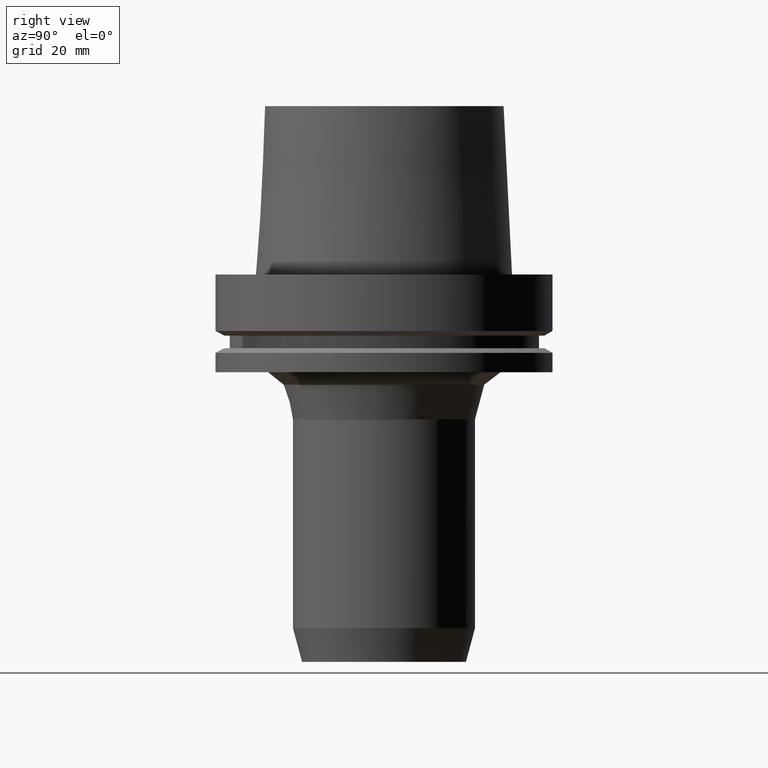
[diagram: clean part render]
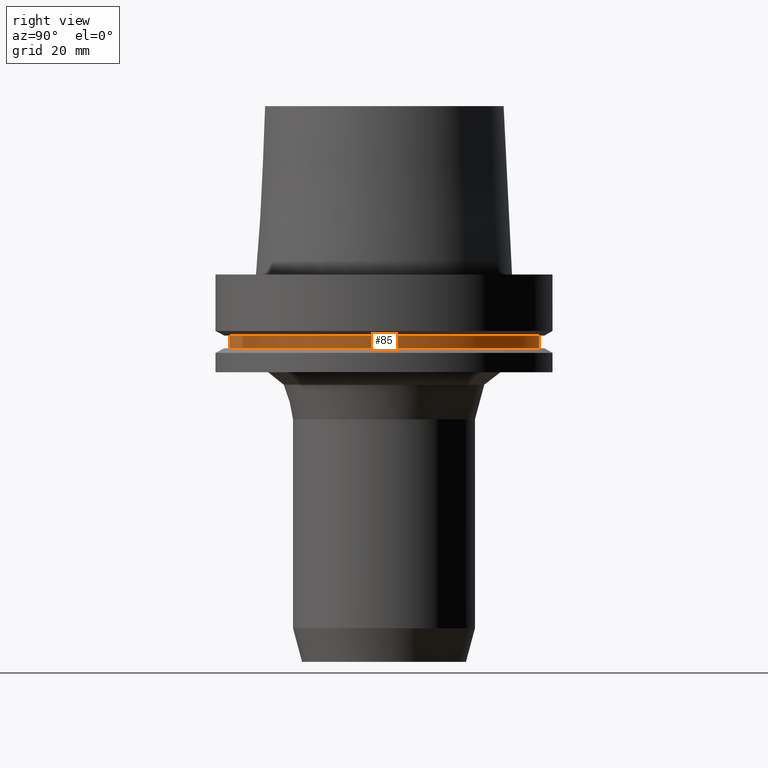
[diagram: same view with one face highlighted and labeled with its STEP entity id]
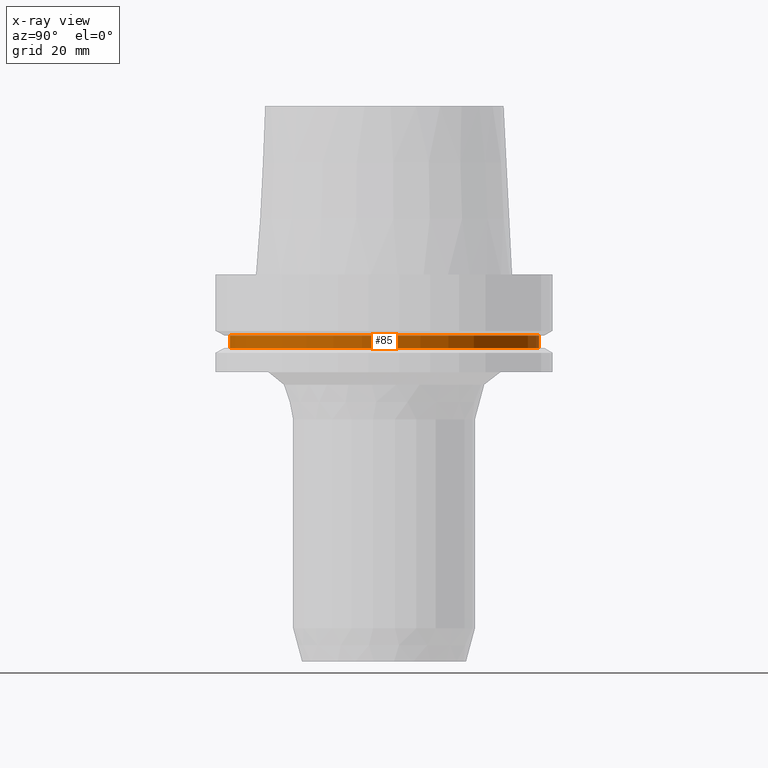
[diagram: x-ray of the same camera — body ghosted, the highlighted face saturated]
A machine part, right view. The second image highlights one B-rep face of the part: STEP entity #85.
The next image is the same camera in x-ray: the body ghosted, the highlighted face saturated — about 0% of this face is hidden behind the body in this view.
In plain terms, the highlighted cylindrical surface (bore or boss wall) has radius 46 mm, axis along (0, 0, -1).
Its self-contained STEP definition (entity closure, byte-faithful):
#85=ADVANCED_FACE('',(#120,#121),#122,.T.);
#120=FACE_BOUND('',#166,.T.);
#121=FACE_BOUND('',#167,.T.);
#122=CYLINDRICAL_SURFACE('',#168,46.0);
#166=EDGE_LOOP('',(#232));
#167=EDGE_LOOP('',(#233));
#168=AXIS2_PLACEMENT_3D('',#234,#235,#236);
#232=ORIENTED_EDGE('',*,*,#272,.F.);
#233=ORIENTED_EDGE('',*,*,#271,.T.);
#234=CARTESIAN_POINT('',(1.22464679914735E-015,2.44929359829471E-015,-20.0));
#235=DIRECTION('',(6.12323399573677E-017,1.22464679914735E-016,-1.0));
#236=DIRECTION('',(-1.23259516440783E-032,1.0,1.22464679914735E-016));
#271=EDGE_CURVE('',#295,#295,#296,.T.);
#272=EDGE_CURVE('',#297,#297,#298,.T.);
#295=VERTEX_POINT('',#325);
#296=CIRCLE('',#326,46.0);
#297=VERTEX_POINT('',#327);
#298=CIRCLE('',#328,46.0);
#325=CARTESIAN_POINT('',(1.33945743656742E-015,46.0,-21.875));
#326=AXIS2_PLACEMENT_3D('',#364,#365,#366);
#327=CARTESIAN_POINT('',(1.10983616172729E-015,46.0,-18.125));
#328=AXIS2_PLACEMENT_3D('',#367,#368,#369);
#364=CARTESIAN_POINT('',(1.33945743656742E-015,2.67891487313483E-015,-21.875));
#365=DIRECTION('',(-6.12323399573677E-017,-1.22464679914735E-016,1.0));
#366=DIRECTION('',(-1.23259516440783E-032,1.0,1.22464679914735E-016));
#367=CARTESIAN_POINT('',(1.10983616172729E-015,2.21967232345458E-015,-18.125));
#368=DIRECTION('',(-6.12323399573677E-017,-1.22464679914735E-016,1.0));
#369=DIRECTION('',(-1.23259516440783E-032,1.0,1.22464679914735E-016));